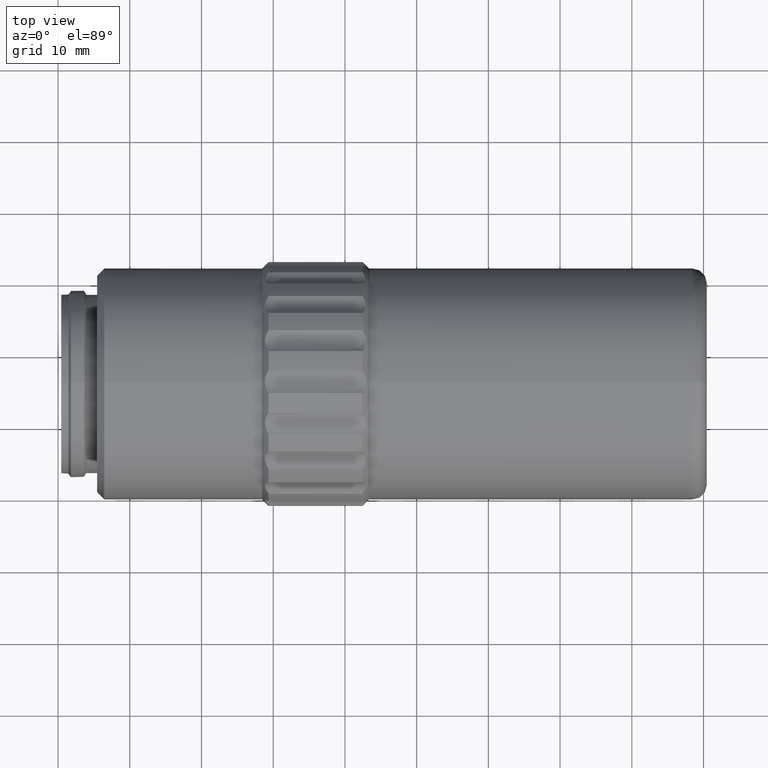
[diagram: clean part render]
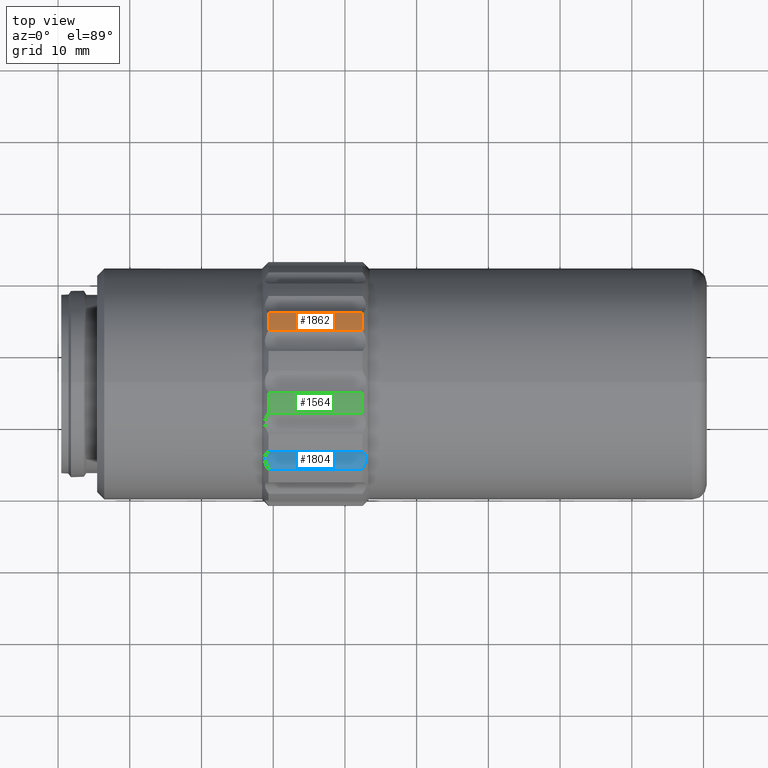
[diagram: same view with three faces highlighted in distinct colors, each labeled with its STEP entity id]
A machine part, top view with three faces highlighted in distinct colors.
Their STEP definitions:

[orange] entity #1862 — the highlighted cylindrical surface (partial cylindrical patch) has radius 17 mm, axis along (-1, 0, 0).
#1 = CARTESIAN_POINT ( 'NONE',  ( 32.44685803487878673, 46.02096199999999726, 0.000000000000000000 ) ) ;
#31 = ORIENTED_EDGE ( 'NONE', *, *, #1922, .T. ) ;
#50 = DIRECTION ( 'NONE',  ( -1.000000000000000000, 0.000000000000000000, 0.000000000000000000 ) ) ;
#109 = AXIS2_PLACEMENT_3D ( 'NONE', #1, #645, #1299 ) ;
#147 = VECTOR ( 'NONE', #690, 1000.000000000000000 ) ;
#204 = CARTESIAN_POINT ( 'NONE',  ( 53.58686043487880823, 53.26466578228020410, 15.37949139323468017 ) ) ;
#232 = CARTESIAN_POINT ( 'NONE',  ( 32.44685803487878673, 55.71814035268528187, 13.96297718956140166 ) ) ;
#242 = VERTEX_POINT ( 'NONE', #557 ) ;
#373 = FACE_OUTER_BOUND ( 'NONE', #1253, .T. ) ;
#488 = VECTOR ( 'NONE', #1362, 1000.000000000000000 ) ;
#557 = CARTESIAN_POINT ( 'NONE',  ( 19.34685803487878886, 55.71814035268528187, 13.96297718956139278 ) ) ;
#568 = CARTESIAN_POINT ( 'NONE',  ( 25.94685803487879738, 55.71814035268529608, 13.96297718956138922 ) ) ;
#588 = DIRECTION ( 'NONE',  ( 0.000000000000000000, -3.673532066774414791E-15, 1.000000000000000000 ) ) ;
#638 = VERTEX_POINT ( 'NONE', #1992 ) ;
#641 = ORIENTED_EDGE ( 'NONE', *, *, #1824, .T. ) ;
#645 = DIRECTION ( 'NONE',  ( 1.000000000000000000, -0.000000000000000000, -0.000000000000000000 ) ) ;
#648 = AXIS2_PLACEMENT_3D ( 'NONE', #1508, #50, #1351 ) ;
#690 = DIRECTION ( 'NONE',  ( 1.000000000000000000, -0.000000000000000000, -0.000000000000000000 ) ) ;
#701 = VERTEX_POINT ( 'NONE', #1831 ) ;
#977 = EDGE_CURVE ( 'NONE', #1488, #638, #1530, .T. ) ;
#1082 = CIRCLE ( 'NONE', #2009, 17.00000000000000000 ) ;
#1175 = LINE ( 'NONE', #204, #147 ) ;
#1196 = CYLINDRICAL_SURFACE ( 'NONE', #648, 17.00000000000000000 ) ;
#1253 = EDGE_LOOP ( 'NONE', ( #1352, #31, #641, #2013 ) ) ;
#1299 = DIRECTION ( 'NONE',  ( 0.000000000000000000, 1.000000000000000000, 8.881784197001252323E-16 ) ) ;
#1351 = DIRECTION ( 'NONE',  ( 0.000000000000000000, 0.000000000000000000, 1.000000000000000000 ) ) ;
#1352 = ORIENTED_EDGE ( 'NONE', *, *, #1441, .T. ) ;
#1362 = DIRECTION ( 'NONE',  ( -1.000000000000000000, 0.000000000000000000, 0.000000000000000000 ) ) ;
#1441 = EDGE_CURVE ( 'NONE', #1488, #242, #2025, .T. ) ;
#1488 = VERTEX_POINT ( 'NONE', #232 ) ;
#1508 = CARTESIAN_POINT ( 'NONE',  ( 25.94685803487879738, 46.02096199999999726, 0.000000000000000000 ) ) ;
#1530 = CIRCLE ( 'NONE', #109, 17.00000000000000000 ) ;
#1824 = EDGE_CURVE ( 'NONE', #701, #638, #1175, .T. ) ;
#1831 = CARTESIAN_POINT ( 'NONE',  ( 19.34685803487879596, 53.26466578228020410, 15.37949139323468017 ) ) ;
#1862 = ADVANCED_FACE ( 'NONE', ( #373 ), #1196, .T. ) ;
#1883 = DIRECTION ( 'NONE',  ( 1.000000000000000000, -0.000000000000000000, -0.000000000000000000 ) ) ;
#1922 = EDGE_CURVE ( 'NONE', #242, #701, #1082, .T. ) ;
#1992 = CARTESIAN_POINT ( 'NONE',  ( 32.44685803487879383, 53.26466578228019699, 15.37949139323468017 ) ) ;
#2009 = AXIS2_PLACEMENT_3D ( 'NONE', #2029, #1883, #588 ) ;
#2013 = ORIENTED_EDGE ( 'NONE', *, *, #977, .F. ) ;
#2025 = LINE ( 'NONE', #568, #488 ) ;
#2029 = CARTESIAN_POINT ( 'NONE',  ( 19.34685803487879596, 46.02096199999999726, 0.000000000000000000 ) ) ;

[blue] entity #1804 — the highlighted cylindrical surface (edge-blend (fillet) strip) has radius 3 mm, axis along (-1, 0, 0).
#86 = CARTESIAN_POINT ( 'NONE',  ( 18.94160666128826520, 34.82470436459485086, 12.24933554730702312 ) ) ;
#137 = DIRECTION ( 'NONE',  ( -1.000000000000000000, 0.000000000000000000, 0.000000000000000000 ) ) ;
#148 = CARTESIAN_POINT ( 'NONE',  ( 18.85870489934780991, 35.62512614287680179, 12.82915025000380105 ) ) ;
#149 = VERTEX_POINT ( 'NONE', #476 ) ;
#165 = CARTESIAN_POINT ( 'NONE',  ( 19.07378008189501628, 36.12848957674106742, 13.49056406336131886 ) ) ;
#170 = LINE ( 'NONE', #804, #1993 ) ;
#219 = EDGE_CURVE ( 'NONE', #1159, #149, #170, .T. ) ;
#235 = CARTESIAN_POINT ( 'NONE',  ( 32.88806413580808652, 34.95203119838304673, 12.31632407541566465 ) ) ;
#278 = CARTESIAN_POINT ( 'NONE',  ( 32.44685803487877962, 33.95401115804232006, 11.97450196783887932 ) ) ;
#300 = CARTESIAN_POINT ( 'NONE',  ( 19.34685803487878886, 36.32378364731472686, 13.96297718956139455 ) ) ;
#305 = LINE ( 'NONE', #1580, #989 ) ;
#312 = AXIS2_PLACEMENT_3D ( 'NONE', #326, #137, #2070 ) ;
#313 = CARTESIAN_POINT ( 'NONE',  ( 18.84700383090775588, 35.30292207748090760, 12.54587797077276079 ) ) ;
#326 = CARTESIAN_POINT ( 'NONE',  ( 53.58686043487880823, 33.48660361111249983, 14.93786664082010063 ) ) ;
#401 = CARTESIAN_POINT ( 'NONE',  ( 19.34685803487878886, 36.32378364731472686, 13.96297718956139455 ) ) ;
#410 = CARTESIAN_POINT ( 'NONE',  ( 18.90699781735015961, 34.94694193895058731, 12.31354536760547447 ) ) ;
#438 = CARTESIAN_POINT ( 'NONE',  ( 32.93501117040978698, 35.19193332115172979, 12.46565831306566530 ) ) ;
#460 = CARTESIAN_POINT ( 'NONE',  ( 18.84671480941283050, 35.52309574243636803, 12.73030636577399832 ) ) ;
#461 = VERTEX_POINT ( 'NONE', #1482 ) ;
#476 = CARTESIAN_POINT ( 'NONE',  ( 32.44685803487879383, 36.32378364731472686, 13.96297718956139100 ) ) ;
#596 = CARTESIAN_POINT ( 'NONE',  ( 32.88671825240744084, 35.81747045796283402, 13.04400552683793890 ) ) ;
#605 = EDGE_LOOP ( 'NONE', ( #1022, #1091, #1296, #1106 ) ) ;
#647 = DIRECTION ( 'NONE',  ( 1.000000000000000000, -0.000000000000000000, -0.000000000000000000 ) ) ;
#654 = CARTESIAN_POINT ( 'NONE',  ( 32.71993598786254864, 34.45315972681317618, 12.08479540418656484 ) ) ;
#791 = DIRECTION ( 'NONE',  ( -1.000000000000000000, 0.000000000000000000, 0.000000000000000000 ) ) ;
#804 = CARTESIAN_POINT ( 'NONE',  ( 53.58686043487880823, 36.32378364731472686, 13.96297718956139100 ) ) ;
#889 = EDGE_CURVE ( 'NONE', #461, #2066, #305, .T. ) ;
#989 = VECTOR ( 'NONE', #791, 1000.000000000000000 ) ;
#1022 = ORIENTED_EDGE ( 'NONE', *, *, #1231, .F. ) ;
#1058 = CARTESIAN_POINT ( 'NONE',  ( 18.85967090375868338, 35.18529463847769989, 12.46115531925904918 ) ) ;
#1066 = B_SPLINE_CURVE_WITH_KNOTS ( 'NONE', 3,
 ( #1220, #1720, #1409, #2060, #596, #1901, #1245, #1699, #438, #235, #1083, #654, #2084, #278 ),
 .UNSPECIFIED., .F., .F.,
 ( 4, 2, 2, 2, 2, 2, 4 ),
 ( 1.734723475976807094E-18, 0.0008570537395405545362, 0.001285580609310830883, 0.001714107479081107338, 0.002142634348851384010, 0.002571161218621660031, 0.003428214958162204701 ),
 .UNSPECIFIED. ) ;
#1083 = CARTESIAN_POINT ( 'NONE',  ( 32.85273454226021528, 34.82682132065500724, 12.25041840084325884 ) ) ;
#1091 = ORIENTED_EDGE ( 'NONE', *, *, #889, .F. ) ;
#1093 = CARTESIAN_POINT ( 'NONE',  ( 18.94098152749737807, 35.90049711072168037, 13.15133936029216422 ) ) ;
#1106 = ORIENTED_EDGE ( 'NONE', *, *, #219, .F. ) ;
#1141 = FACE_OUTER_BOUND ( 'NONE', #605, .T. ) ;
#1159 = VERTEX_POINT ( 'NONE', #401 ) ;
#1220 = CARTESIAN_POINT ( 'NONE',  ( 32.44685803487879383, 36.32378364731472686, 13.96297718956139100 ) ) ;
#1231 = EDGE_CURVE ( 'NONE', #2066, #1159, #2017, .T. ) ;
#1242 = CARTESIAN_POINT ( 'NONE',  ( 19.19974036611867874, 36.24294634268020587, 13.72771975950780998 ) ) ;
#1245 = CARTESIAN_POINT ( 'NONE',  ( 32.94671223884984101, 35.52685220674476341, 12.73377765964755071 ) ) ;
#1287 = CYLINDRICAL_SURFACE ( 'NONE', #312, 3.000000000000000888 ) ;
#1296 = ORIENTED_EDGE ( 'NONE', *, *, #1778, .F. ) ;
#1409 = CARTESIAN_POINT ( 'NONE',  ( 32.71832649179926733, 36.13051957456375618, 13.49406587643664324 ) ) ;
#1482 = CARTESIAN_POINT ( 'NONE',  ( 32.44685803487877962, 33.95401115804232006, 11.97450196783887932 ) ) ;
#1542 = CARTESIAN_POINT ( 'NONE',  ( 19.34685803487880307, 33.95401115804232006, 11.97450196783887932 ) ) ;
#1580 = CARTESIAN_POINT ( 'NONE',  ( 25.94685803487879738, 33.95401115804232006, 11.97450196783886867 ) ) ;
#1699 = CARTESIAN_POINT ( 'NONE',  ( 32.94700126034476284, 35.30699293778219783, 12.54897458209229022 ) ) ;
#1720 = CARTESIAN_POINT ( 'NONE',  ( 32.59371544402083742, 36.24308934852178510, 13.72813594343332078 ) ) ;
#1769 = CARTESIAN_POINT ( 'NONE',  ( 19.34685803487880307, 33.95401115804232006, 11.97450196783887932 ) ) ;
#1778 = EDGE_CURVE ( 'NONE', #149, #461, #1066, .T. ) ;
#1804 = ADVANCED_FACE ( 'NONE', ( #1141 ), #1287, .F. ) ;
#1877 = CARTESIAN_POINT ( 'NONE',  ( 19.07538957795834378, 34.44935860872440259, 12.08340433005123060 ) ) ;
#1901 = CARTESIAN_POINT ( 'NONE',  ( 32.93404516599891707, 35.63071352123775171, 12.83490613950239734 ) ) ;
#1921 = CARTESIAN_POINT ( 'NONE',  ( 18.90565193394949972, 35.81385022434189835, 13.03947610223928066 ) ) ;
#1993 = VECTOR ( 'NONE', #647, 1000.000000000000000 ) ;
#2017 = B_SPLINE_CURVE_WITH_KNOTS ( 'NONE', 3,
 ( #1542, #2035, #1877, #86, #410, #1058, #313, #460, #148, #1921, #1093, #165, #1242, #300 ),
 .UNSPECIFIED., .F., .F.,
 ( 4, 2, 2, 2, 2, 2, 4 ),
 ( 0.000000000000000000, 0.0008570537395405546446, 0.001285580609310831967, 0.001714107479081109289, 0.002142634348851386612, 0.002571161218621663934, 0.003428214958162211640 ),
 .UNSPECIFIED. ) ;
#2035 = CARTESIAN_POINT ( 'NONE',  ( 19.20000062573678434, 34.19929705588980795, 12.01319058448290278 ) ) ;
#2060 = CARTESIAN_POINT ( 'NONE',  ( 32.85210940846934591, 35.90193111884155996, 13.15323611948971916 ) ) ;
#2066 = VERTEX_POINT ( 'NONE', #1769 ) ;
#2070 = DIRECTION ( 'NONE',  ( 0.000000000000000000, 0.000000000000000000, 1.000000000000000000 ) ) ;
#2084 = CARTESIAN_POINT ( 'NONE',  ( 32.59397570363888264, 34.19973174975009300, 12.01325914816415796 ) ) ;

[green] entity #1564 — the highlighted cylindrical surface (partial cylindrical patch) has radius 17 mm, axis along (-1, 0, 0).
#6 = CIRCLE ( 'NONE', #442, 17.00000000000000000 ) ;
#43 = ORIENTED_EDGE ( 'NONE', *, *, #2011, .T. ) ;
#79 = DIRECTION ( 'NONE',  ( 1.000000000000000000, -0.000000000000000000, -0.000000000000000000 ) ) ;
#83 = DIRECTION ( 'NONE',  ( 0.000000000000000000, 0.000000000000000000, 1.000000000000000000 ) ) ;
#115 = DIRECTION ( 'NONE',  ( 0.000000000000000000, 8.163404592832032979E-16, 1.000000000000000000 ) ) ;
#128 = EDGE_CURVE ( 'NONE', #1643, #1322, #1136, .T. ) ;
#163 = EDGE_CURVE ( 'NONE', #1977, #2044, #1803, .T. ) ;
#241 = CYLINDRICAL_SURFACE ( 'NONE', #1611, 17.00000000000000000 ) ;
#251 = CIRCLE ( 'NONE', #525, 17.00000000000000000 ) ;
#340 = CARTESIAN_POINT ( 'NONE',  ( 25.94685803487879738, 44.47420285922229510, 16.92948717948717530 ) ) ;
#363 = DIRECTION ( 'NONE',  ( -1.000000000000000000, 0.000000000000000000, 0.000000000000000000 ) ) ;
#404 = CARTESIAN_POINT ( 'NONE',  ( 32.44685803487879383, 44.47420285922232353, 16.92948717948717530 ) ) ;
#442 = AXIS2_PLACEMENT_3D ( 'NONE', #2074, #79, #2063 ) ;
#525 = AXIS2_PLACEMENT_3D ( 'NONE', #1569, #915, #115 ) ;
#813 = CARTESIAN_POINT ( 'NONE',  ( 19.34685803487880307, 44.47420285922230931, 16.92948717948718595 ) ) ;
#834 = DIRECTION ( 'NONE',  ( 1.000000000000000000, -0.000000000000000000, -0.000000000000000000 ) ) ;
#866 = ORIENTED_EDGE ( 'NONE', *, *, #128, .T. ) ;
#884 = CARTESIAN_POINT ( 'NONE',  ( 25.94685803487879738, 46.02096199999999726, 0.000000000000000000 ) ) ;
#915 = DIRECTION ( 'NONE',  ( 1.000000000000000000, -0.000000000000000000, -0.000000000000000000 ) ) ;
#995 = VECTOR ( 'NONE', #363, 1000.000000000000000 ) ;
#1136 = LINE ( 'NONE', #1477, #1715 ) ;
#1306 = ORIENTED_EDGE ( 'NONE', *, *, #163, .T. ) ;
#1322 = VERTEX_POINT ( 'NONE', #1406 ) ;
#1406 = CARTESIAN_POINT ( 'NONE',  ( 32.44685803487876541, 41.68421451916363196, 16.43753695927285818 ) ) ;
#1477 = CARTESIAN_POINT ( 'NONE',  ( 53.58686043487880823, 41.68421451916363196, 16.43753695927285818 ) ) ;
#1539 = DIRECTION ( 'NONE',  ( -1.000000000000000000, 0.000000000000000000, 0.000000000000000000 ) ) ;
#1560 = ORIENTED_EDGE ( 'NONE', *, *, #1905, .F. ) ;
#1564 = ADVANCED_FACE ( 'NONE', ( #1703 ), #241, .T. ) ;
#1569 = CARTESIAN_POINT ( 'NONE',  ( 19.34685803487879596, 46.02096199999999726, 0.000000000000000000 ) ) ;
#1611 = AXIS2_PLACEMENT_3D ( 'NONE', #884, #1539, #83 ) ;
#1643 = VERTEX_POINT ( 'NONE', #1896 ) ;
#1703 = FACE_OUTER_BOUND ( 'NONE', #1979, .T. ) ;
#1715 = VECTOR ( 'NONE', #834, 1000.000000000000000 ) ;
#1803 = LINE ( 'NONE', #340, #995 ) ;
#1896 = CARTESIAN_POINT ( 'NONE',  ( 19.34685803487881728, 41.68421451916362486, 16.43753695927285108 ) ) ;
#1905 = EDGE_CURVE ( 'NONE', #1977, #1322, #6, .T. ) ;
#1977 = VERTEX_POINT ( 'NONE', #404 ) ;
#1979 = EDGE_LOOP ( 'NONE', ( #866, #1560, #1306, #43 ) ) ;
#2011 = EDGE_CURVE ( 'NONE', #2044, #1643, #251, .T. ) ;
#2044 = VERTEX_POINT ( 'NONE', #813 ) ;
#2063 = DIRECTION ( 'NONE',  ( 0.000000000000000000, 1.000000000000000000, 1.776356839400250465E-15 ) ) ;
#2074 = CARTESIAN_POINT ( 'NONE',  ( 32.44685803487878673, 46.02096199999999726, 0.000000000000000000 ) ) ;